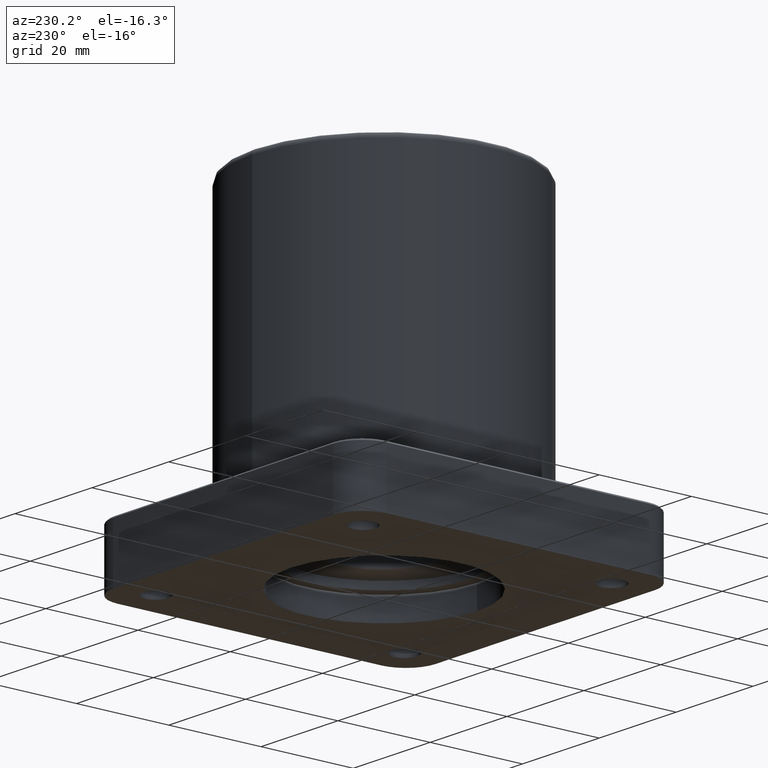
[diagram: clean part render]
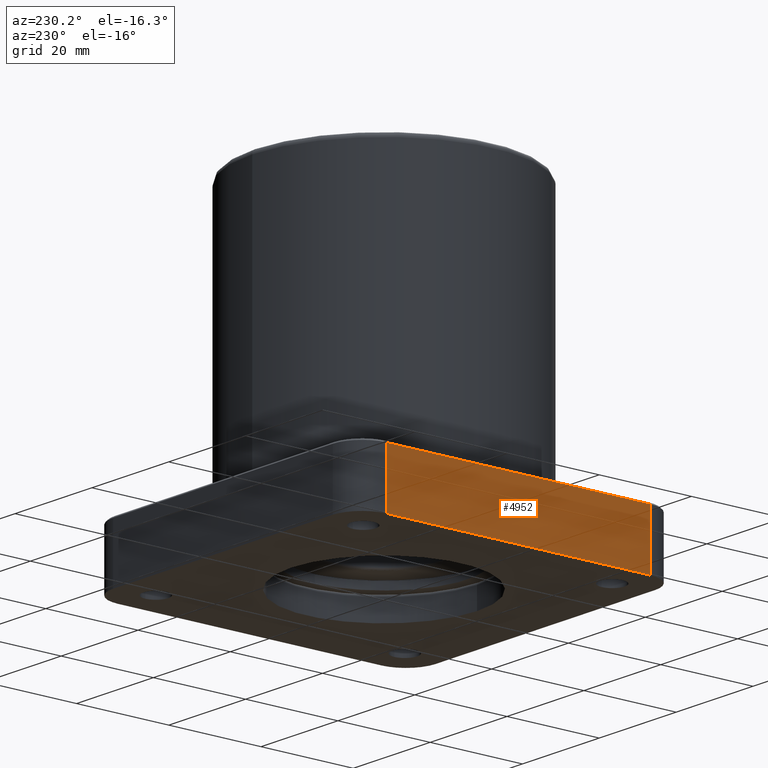
[diagram: same view with one face highlighted and labeled with its STEP entity id]
A machine part, auxiliary view. The second image highlights one B-rep face of the part: STEP entity #4952.
In plain terms, the highlighted planar face has unit normal (-1, 0, 0).
Its self-contained STEP definition (entity closure, byte-faithful):
#1 = VERTEX_POINT ( 'NONE', #7219 ) ;
#62 = EDGE_CURVE ( 'NONE', #7412, #1, #8228, .T. ) ;
#138 = DIRECTION ( 'NONE',  ( -0.000000000000000000, -0.000000000000000000, 1.000000000000000000 ) ) ;
#353 = DIRECTION ( 'NONE',  ( 0.000000000000000000, 1.000000000000000000, 1.444403239512299634E-16 ) ) ;
#384 = DIRECTION ( 'NONE',  ( -0.000000000000000000, -0.000000000000000000, 1.000000000000000000 ) ) ;
#760 = EDGE_CURVE ( 'NONE', #7254, #5571, #4056, .T. ) ;
#850 = CARTESIAN_POINT ( 'NONE',  ( -1.374999999999999778, -1.125000000000000000, 0.4849999999999993205 ) ) ;
#874 = VECTOR ( 'NONE', #384, 39.37007874015748143 ) ;
#1510 = ORIENTED_EDGE ( 'NONE', *, *, #2099, .F. ) ;
#2099 = EDGE_CURVE ( 'NONE', #7412, #5571, #5813, .T. ) ;
#2327 = CARTESIAN_POINT ( 'NONE',  ( -1.374999999999999778, 1.125000000000000000, -1.707404996040164512E-17 ) ) ;
#2945 = CARTESIAN_POINT ( 'NONE',  ( -1.374999999999999778, -1.125000000000000000, -1.707404996040164512E-17 ) ) ;
#3503 = VECTOR ( 'NONE', #138, 39.37007874015748143 ) ;
#3761 = DIRECTION ( 'NONE',  ( -0.000000000000000000, -1.000000000000000000, -0.000000000000000000 ) ) ;
#3786 = ORIENTED_EDGE ( 'NONE', *, *, #62, .T. ) ;
#4056 = LINE ( 'NONE', #4764, #6687 ) ;
#4067 = CARTESIAN_POINT ( 'NONE',  ( -1.374999999999999778, 1.125000000000000000, 0.4849999999999996536 ) ) ;
#4764 = CARTESIAN_POINT ( 'NONE',  ( -1.374999999999999778, -1.125000000000000222, 0.4849999999999993205 ) ) ;
#4841 = LINE ( 'NONE', #4925, #874 ) ;
#4920 = EDGE_CURVE ( 'NONE', #1, #7254, #4841, .T. ) ;
#4925 = CARTESIAN_POINT ( 'NONE',  ( -1.374999999999999778, -1.125000000000000000, -1.707404996040164512E-17 ) ) ;
#4952 = ADVANCED_FACE ( 'NONE', ( #7440 ), #5385, .T. ) ;
#5011 = CARTESIAN_POINT ( 'NONE',  ( -1.374999999999999778, -1.125000000000000000, -1.707404996040164512E-17 ) ) ;
#5385 = PLANE ( 'NONE',  #5910 ) ;
#5475 = DIRECTION ( 'NONE',  ( 0.000000000000000000, 0.000000000000000000, 1.000000000000000000 ) ) ;
#5571 = VERTEX_POINT ( 'NONE', #4067 ) ;
#5813 = LINE ( 'NONE', #6377, #3503 ) ;
#5910 = AXIS2_PLACEMENT_3D ( 'NONE', #2945, #7400, #5475 ) ;
#6377 = CARTESIAN_POINT ( 'NONE',  ( -1.374999999999999778, 1.125000000000000000, -1.707404996040164512E-17 ) ) ;
#6687 = VECTOR ( 'NONE', #353, 39.37007874015748143 ) ;
#7219 = CARTESIAN_POINT ( 'NONE',  ( -1.374999999999999778, -1.125000000000000000, -1.707404996040164512E-17 ) ) ;
#7254 = VERTEX_POINT ( 'NONE', #850 ) ;
#7400 = DIRECTION ( 'NONE',  ( -1.000000000000000000, 0.000000000000000000, 0.000000000000000000 ) ) ;
#7412 = VERTEX_POINT ( 'NONE', #2327 ) ;
#7440 = FACE_OUTER_BOUND ( 'NONE', #8023, .T. ) ;
#7503 = VECTOR ( 'NONE', #3761, 39.37007874015748143 ) ;
#8023 = EDGE_LOOP ( 'NONE', ( #8196, #8169, #1510, #3786 ) ) ;
#8169 = ORIENTED_EDGE ( 'NONE', *, *, #760, .T. ) ;
#8196 = ORIENTED_EDGE ( 'NONE', *, *, #4920, .T. ) ;
#8228 = LINE ( 'NONE', #5011, #7503 ) ;